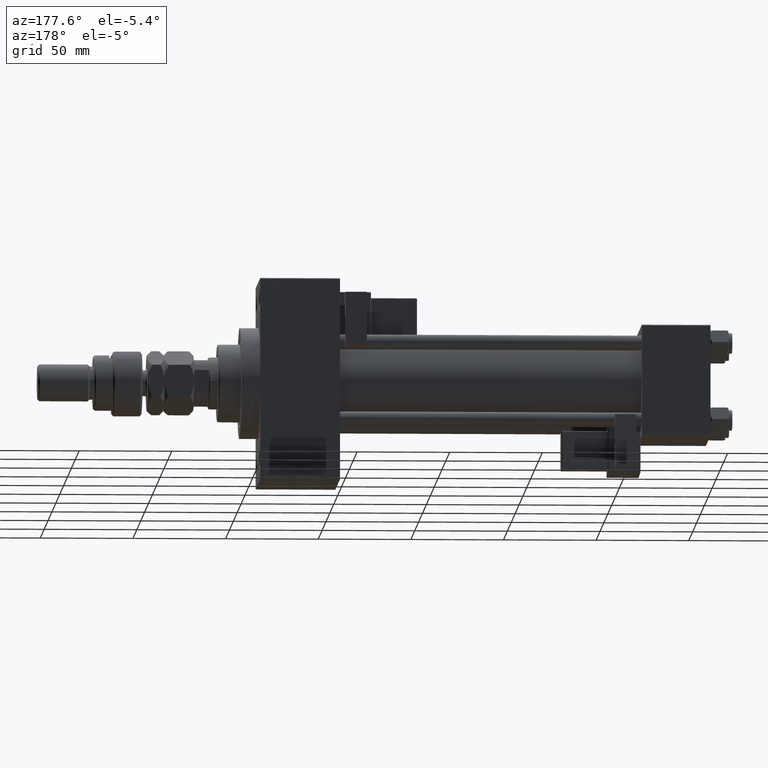
[diagram: clean part render]
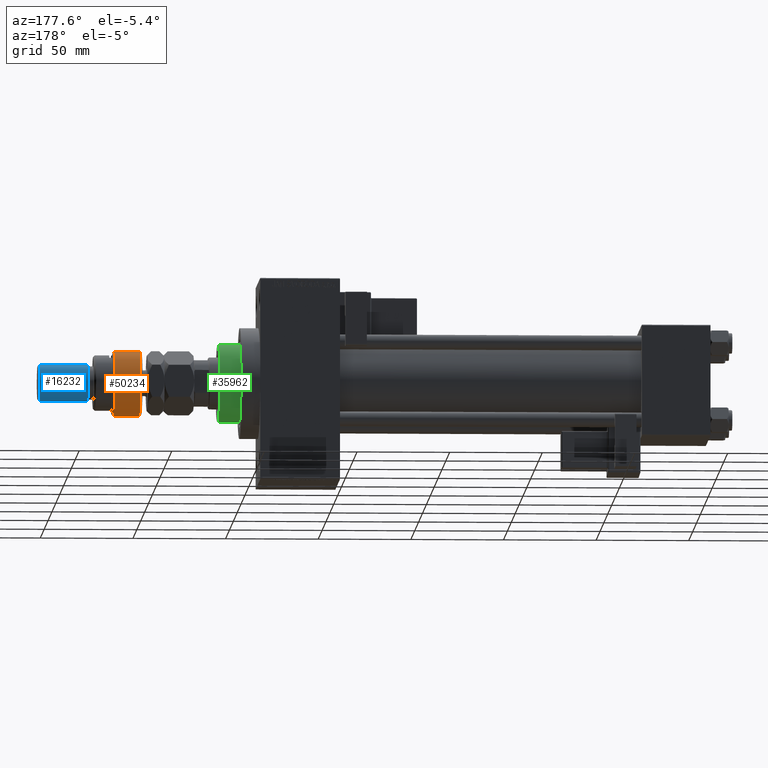
[diagram: same view with three faces highlighted in distinct colors, each labeled with its STEP entity id]
A machine part, auxiliary view with three faces highlighted in distinct colors.
Their STEP definitions:

[orange] entity #50234 — the highlighted cylindrical surface (edge-blend (fillet) strip) has radius 18 mm, axis along (-1, -0, 0).
#2511 = AXIS2_PLACEMENT_3D ( 'NONE', #39981, #35989, #3544 ) ;
#3544 = DIRECTION ( 'NONE',  ( 1.000000000000000000, 0.000000000000000000, 0.000000000000000000 ) ) ;
#5566 = DIRECTION ( 'NONE',  ( -0.000000000000000000, -0.000000000000000000, -1.000000000000000000 ) ) ;
#6790 = EDGE_CURVE ( 'NONE', #44600, #33179, #29002, .T. ) ;
#7346 = AXIS2_PLACEMENT_3D ( 'NONE', #33713, #21750, #17232 ) ;
#9575 = ORIENTED_EDGE ( 'NONE', *, *, #31529, .T. ) ;
#12811 = ORIENTED_EDGE ( 'NONE', *, *, #26823, .T. ) ;
#15485 = CARTESIAN_POINT ( 'NONE',  ( 18.00000000000000000, 0.000000000000000000, 1.000000000000011324 ) ) ;
#15768 = VECTOR ( 'NONE', #49738, 1000.000000000000000 ) ;
#16205 = CIRCLE ( 'NONE', #22990, 18.00000000000000000 ) ;
#16325 = AXIS2_PLACEMENT_3D ( 'NONE', #21393, #18170, #26155 ) ;
#17232 = DIRECTION ( 'NONE',  ( -1.000000000000000000, 0.000000000000000000, 0.000000000000000000 ) ) ;
#18170 = DIRECTION ( 'NONE',  ( 0.000000000000000000, 0.000000000000000000, -1.000000000000000000 ) ) ;
#18522 = VERTEX_POINT ( 'NONE', #21404 ) ;
#18573 = DIRECTION ( 'NONE',  ( -0.000000000000000000, -0.000000000000000000, 1.000000000000000000 ) ) ;
#18626 = EDGE_CURVE ( 'NONE', #29919, #33179, #38187, .T. ) ;
#18789 = CARTESIAN_POINT ( 'NONE',  ( -16.36306817195357155, -7.500000000000000000, 14.99999999999999645 ) ) ;
#19802 = ORIENTED_EDGE ( 'NONE', *, *, #18626, .T. ) ;
#20994 = CARTESIAN_POINT ( 'NONE',  ( -16.36306817195357155, -7.500000000000000000, 17.50000000000000000 ) ) ;
#21393 = CARTESIAN_POINT ( 'NONE',  ( 0.000000000000000000, 0.000000000000000000, 14.99999999999999645 ) ) ;
#21404 = CARTESIAN_POINT ( 'NONE',  ( -16.36306817195357155, -7.500000000000000000, 1.000000000000011324 ) ) ;
#21750 = DIRECTION ( 'NONE',  ( -0.000000000000000000, -0.000000000000000000, -1.000000000000000000 ) ) ;
#22488 = CARTESIAN_POINT ( 'NONE',  ( -16.36306817195357155, 7.500000000000000000, 1.000000000000011324 ) ) ;
#22990 = AXIS2_PLACEMENT_3D ( 'NONE', #39320, #18573, #35593 ) ;
#25366 = ORIENTED_EDGE ( 'NONE', *, *, #32384, .T. ) ;
#26155 = DIRECTION ( 'NONE',  ( 1.000000000000000000, 0.000000000000000000, 0.000000000000000000 ) ) ;
#26276 = LINE ( 'NONE', #20994, #31408 ) ;
#26823 = EDGE_CURVE ( 'NONE', #44600, #27289, #40958, .T. ) ;
#27289 = VERTEX_POINT ( 'NONE', #18789 ) ;
#29002 = LINE ( 'NONE', #37261, #15768 ) ;
#29919 = VERTEX_POINT ( 'NONE', #15485 ) ;
#31408 = VECTOR ( 'NONE', #5566, 1000.000000000000000 ) ;
#31529 = EDGE_CURVE ( 'NONE', #27289, #18522, #26276, .T. ) ;
#32384 = EDGE_CURVE ( 'NONE', #18522, #29919, #16205, .T. ) ;
#32411 = ORIENTED_EDGE ( 'NONE', *, *, #6790, .F. ) ;
#33179 = VERTEX_POINT ( 'NONE', #22488 ) ;
#33713 = CARTESIAN_POINT ( 'NONE',  ( 0.000000000000000000, 0.000000000000000000, 16.00000000000000000 ) ) ;
#35593 = DIRECTION ( 'NONE',  ( 1.000000000000000000, 0.000000000000000000, 0.000000000000000000 ) ) ;
#35989 = DIRECTION ( 'NONE',  ( -0.000000000000000000, -0.000000000000000000, 1.000000000000000000 ) ) ;
#37261 = CARTESIAN_POINT ( 'NONE',  ( -16.36306817195357155, 7.500000000000000000, 17.50000000000000000 ) ) ;
#38187 = CIRCLE ( 'NONE', #2511, 18.00000000000000000 ) ;
#39320 = CARTESIAN_POINT ( 'NONE',  ( 0.000000000000000000, 0.000000000000000000, 1.000000000000011324 ) ) ;
#39981 = CARTESIAN_POINT ( 'NONE',  ( 0.000000000000000000, 0.000000000000000000, 1.000000000000011324 ) ) ;
#40285 = CARTESIAN_POINT ( 'NONE',  ( -16.36306817195357155, 7.500000000000000000, 14.99999999999999645 ) ) ;
#40958 = CIRCLE ( 'NONE', #16325, 18.00000000000000000 ) ;
#44600 = VERTEX_POINT ( 'NONE', #40285 ) ;
#45688 = CYLINDRICAL_SURFACE ( 'NONE', #7346, 18.00000000000000000 ) ;
#45947 = FACE_OUTER_BOUND ( 'NONE', #46096, .T. ) ;
#46096 = EDGE_LOOP ( 'NONE', ( #32411, #12811, #9575, #25366, #19802 ) ) ;
#49738 = DIRECTION ( 'NONE',  ( -0.000000000000000000, -0.000000000000000000, -1.000000000000000000 ) ) ;
#50234 = ADVANCED_FACE ( 'NONE', ( #45947 ), #45688, .T. ) ;

[blue] entity #16232 — the highlighted cylindrical surface (edge-blend (fillet) strip) has radius 10 mm, axis along (-1, -0, 0).
#231 = EDGE_CURVE ( 'NONE', #7110, #49680, #33272, .T. ) ;
#740 = EDGE_CURVE ( 'NONE', #30186, #4122, #47545, .T. ) ;
#742 = CYLINDRICAL_SURFACE ( 'NONE', #12624, 10.00000000000000000 ) ;
#4122 = VERTEX_POINT ( 'NONE', #6650 ) ;
#4981 = DIRECTION ( 'NONE',  ( -0.000000000000000000, -0.000000000000000000, -1.000000000000000000 ) ) ;
#6650 = CARTESIAN_POINT ( 'NONE',  ( 10.00000000000000000, 1.224646799147353256E-15, 29.00000000000000711 ) ) ;
#7110 = VERTEX_POINT ( 'NONE', #17977 ) ;
#8734 = ORIENTED_EDGE ( 'NONE', *, *, #13469, .T. ) ;
#10551 = VECTOR ( 'NONE', #13077, 1000.000000000000000 ) ;
#12000 = DIRECTION ( 'NONE',  ( -0.000000000000000000, -0.000000000000000000, 1.000000000000000000 ) ) ;
#12148 = CARTESIAN_POINT ( 'NONE',  ( 0.000000000000000000, 0.000000000000000000, 54.99999999999998579 ) ) ;
#12624 = AXIS2_PLACEMENT_3D ( 'NONE', #44878, #4981, #37683 ) ;
#13077 = DIRECTION ( 'NONE',  ( -0.000000000000000000, -0.000000000000000000, -1.000000000000000000 ) ) ;
#13469 = EDGE_CURVE ( 'NONE', #4122, #49680, #47302, .T. ) ;
#14831 = ORIENTED_EDGE ( 'NONE', *, *, #22873, .T. ) ;
#16232 = ADVANCED_FACE ( 'NONE', ( #41674 ), #742, .T. ) ;
#17977 = CARTESIAN_POINT ( 'NONE',  ( -10.00000000000000000, 0.000000000000000000, 54.99999999999998579 ) ) ;
#18151 = VECTOR ( 'NONE', #35315, 1000.000000000000000 ) ;
#18288 = ORIENTED_EDGE ( 'NONE', *, *, #231, .F. ) ;
#22873 = EDGE_CURVE ( 'NONE', #7110, #30186, #26488, .T. ) ;
#23425 = DIRECTION ( 'NONE',  ( 1.000000000000000000, 0.000000000000000000, 0.000000000000000000 ) ) ;
#24880 = DIRECTION ( 'NONE',  ( 0.000000000000000000, 0.000000000000000000, -1.000000000000000000 ) ) ;
#24967 = CARTESIAN_POINT ( 'NONE',  ( 10.00000000000000000, 1.224646799147353256E-15, 54.99999999999998579 ) ) ;
#25847 = ORIENTED_EDGE ( 'NONE', *, *, #740, .T. ) ;
#26488 = CIRCLE ( 'NONE', #33285, 10.00000000000000000 ) ;
#30186 = VERTEX_POINT ( 'NONE', #24967 ) ;
#33272 = LINE ( 'NONE', #41786, #10551 ) ;
#33285 = AXIS2_PLACEMENT_3D ( 'NONE', #12148, #24880, #40587 ) ;
#35315 = DIRECTION ( 'NONE',  ( -0.000000000000000000, -0.000000000000000000, -1.000000000000000000 ) ) ;
#37683 = DIRECTION ( 'NONE',  ( -1.000000000000000000, 0.000000000000000000, 0.000000000000000000 ) ) ;
#38249 = EDGE_LOOP ( 'NONE', ( #14831, #25847, #8734, #18288 ) ) ;
#39838 = CARTESIAN_POINT ( 'NONE',  ( 10.00000000000000000, 1.224646799147353256E-15, 56.00000000000000711 ) ) ;
#40587 = DIRECTION ( 'NONE',  ( 1.000000000000000000, 0.000000000000000000, 0.000000000000000000 ) ) ;
#40698 = CARTESIAN_POINT ( 'NONE',  ( 0.000000000000000000, 0.000000000000000000, 29.00000000000000711 ) ) ;
#41674 = FACE_OUTER_BOUND ( 'NONE', #38249, .T. ) ;
#41786 = CARTESIAN_POINT ( 'NONE',  ( -10.00000000000000000, 0.000000000000000000, 56.00000000000000711 ) ) ;
#42599 = CARTESIAN_POINT ( 'NONE',  ( -10.00000000000000000, 0.000000000000000000, 29.00000000000000711 ) ) ;
#44878 = CARTESIAN_POINT ( 'NONE',  ( 0.000000000000000000, 0.000000000000000000, 56.00000000000000711 ) ) ;
#47302 = CIRCLE ( 'NONE', #49879, 10.00000000000000000 ) ;
#47545 = LINE ( 'NONE', #39838, #18151 ) ;
#49680 = VERTEX_POINT ( 'NONE', #42599 ) ;
#49879 = AXIS2_PLACEMENT_3D ( 'NONE', #40698, #12000, #23425 ) ;

[green] entity #35962 — the highlighted cylindrical surface (partial cylindrical patch) has radius 21 mm, axis along (-1, 0, 0).
#317 = DIRECTION ( 'NONE',  ( 1.000000000000000000, 0.000000000000000000, 0.000000000000000000 ) ) ;
#849 = DIRECTION ( 'NONE',  ( 0.000000000000000000, 0.000000000000000000, -1.000000000000000000 ) ) ;
#954 = AXIS2_PLACEMENT_3D ( 'NONE', #22638, #34255, #29742 ) ;
#2556 = CARTESIAN_POINT ( 'NONE',  ( 20.96385542168674831, -1.231570484631382412, 43.25999999999999801 ) ) ;
#3188 = EDGE_CURVE ( 'NONE', #15685, #51267, #43754, .T. ) ;
#4626 = EDGE_CURVE ( 'NONE', #16338, #15685, #33611, .T. ) ;
#5184 = EDGE_CURVE ( 'NONE', #23789, #16190, #14315, .T. ) ;
#6421 = CYLINDRICAL_SURFACE ( 'NONE', #954, 21.00000000000000000 ) ;
#8944 = AXIS2_PLACEMENT_3D ( 'NONE', #45636, #42174, #49355 ) ;
#9047 = DIRECTION ( 'NONE',  ( -0.000000000000000000, -0.000000000000000000, -1.000000000000000000 ) ) ;
#12232 = ORIENTED_EDGE ( 'NONE', *, *, #5184, .T. ) ;
#12440 = EDGE_CURVE ( 'NONE', #46671, #23789, #18529, .T. ) ;
#13403 = CARTESIAN_POINT ( 'NONE',  ( 0.000000000000000000, 0.000000000000000000, 43.25999999999999801 ) ) ;
#13787 = CARTESIAN_POINT ( 'NONE',  ( -21.00000000000000000, 0.000000000000000000, 55.26000000000000512 ) ) ;
#14315 = LINE ( 'NONE', #13787, #47239 ) ;
#14610 = EDGE_CURVE ( 'NONE', #46671, #51267, #29238, .T. ) ;
#15381 = CARTESIAN_POINT ( 'NONE',  ( -21.00000000000000000, 0.000000000000000000, 43.25999999999999801 ) ) ;
#15685 = VERTEX_POINT ( 'NONE', #2556 ) ;
#16190 = VERTEX_POINT ( 'NONE', #15381 ) ;
#16338 = VERTEX_POINT ( 'NONE', #42201 ) ;
#18529 = CIRCLE ( 'NONE', #21080, 21.00000000000000000 ) ;
#19949 = CIRCLE ( 'NONE', #44638, 21.00000000000000000 ) ;
#20207 = ORIENTED_EDGE ( 'NONE', *, *, #4626, .T. ) ;
#21080 = AXIS2_PLACEMENT_3D ( 'NONE', #35755, #849, #317 ) ;
#22247 = CARTESIAN_POINT ( 'NONE',  ( 21.00000000000000000, 2.571758278209441661E-15, 54.75999999999999091 ) ) ;
#22638 = CARTESIAN_POINT ( 'NONE',  ( 0.000000000000000000, 0.000000000000000000, 55.26000000000000512 ) ) ;
#23548 = ORIENTED_EDGE ( 'NONE', *, *, #45423, .T. ) ;
#23789 = VERTEX_POINT ( 'NONE', #43696 ) ;
#26460 = ORIENTED_EDGE ( 'NONE', *, *, #3188, .T. ) ;
#26620 = FACE_OUTER_BOUND ( 'NONE', #39221, .T. ) ;
#28635 = ORIENTED_EDGE ( 'NONE', *, *, #14610, .F. ) ;
#29238 = LINE ( 'NONE', #42270, #49044 ) ;
#29742 = DIRECTION ( 'NONE',  ( -1.000000000000000000, 0.000000000000000000, 0.000000000000000000 ) ) ;
#30243 = CARTESIAN_POINT ( 'NONE',  ( 21.00000000000000000, 2.571758278209441661E-15, 43.25999999999999801 ) ) ;
#32803 = DIRECTION ( 'NONE',  ( 1.000000000000000000, 0.000000000000000000, 0.000000000000000000 ) ) ;
#33596 = DIRECTION ( 'NONE',  ( 0.000000000000000000, 0.000000000000000000, 1.000000000000000000 ) ) ;
#33611 = CIRCLE ( 'NONE', #51446, 21.00000000000000000 ) ;
#34255 = DIRECTION ( 'NONE',  ( -0.000000000000000000, -0.000000000000000000, -1.000000000000000000 ) ) ;
#35755 = CARTESIAN_POINT ( 'NONE',  ( 0.000000000000000000, 0.000000000000000000, 54.75999999999999091 ) ) ;
#35962 = ADVANCED_FACE ( 'NONE', ( #26620 ), #6421, .T. ) ;
#39221 = EDGE_LOOP ( 'NONE', ( #28635, #44658, #12232, #23548, #20207, #26460 ) ) ;
#41410 = DIRECTION ( 'NONE',  ( 1.000000000000000000, 0.000000000000000000, 0.000000000000000000 ) ) ;
#41930 = CARTESIAN_POINT ( 'NONE',  ( 0.000000000000000000, 0.000000000000000000, 43.25999999999999801 ) ) ;
#42174 = DIRECTION ( 'NONE',  ( 0.000000000000000000, 0.000000000000000000, 1.000000000000000000 ) ) ;
#42201 = CARTESIAN_POINT ( 'NONE',  ( -20.96385542168674831, -1.231570484631387741, 43.25999999999999801 ) ) ;
#42270 = CARTESIAN_POINT ( 'NONE',  ( 21.00000000000000000, 2.571758278209441661E-15, 55.26000000000000512 ) ) ;
#43034 = DIRECTION ( 'NONE',  ( -0.000000000000000000, -0.000000000000000000, -1.000000000000000000 ) ) ;
#43696 = CARTESIAN_POINT ( 'NONE',  ( -21.00000000000000000, 0.000000000000000000, 54.75999999999999091 ) ) ;
#43754 = CIRCLE ( 'NONE', #8944, 21.00000000000000000 ) ;
#44638 = AXIS2_PLACEMENT_3D ( 'NONE', #41930, #44682, #41410 ) ;
#44658 = ORIENTED_EDGE ( 'NONE', *, *, #12440, .T. ) ;
#44682 = DIRECTION ( 'NONE',  ( 0.000000000000000000, 0.000000000000000000, 1.000000000000000000 ) ) ;
#45423 = EDGE_CURVE ( 'NONE', #16190, #16338, #19949, .T. ) ;
#45636 = CARTESIAN_POINT ( 'NONE',  ( 0.000000000000000000, 0.000000000000000000, 43.25999999999999801 ) ) ;
#46671 = VERTEX_POINT ( 'NONE', #22247 ) ;
#47239 = VECTOR ( 'NONE', #43034, 1000.000000000000000 ) ;
#49044 = VECTOR ( 'NONE', #9047, 1000.000000000000000 ) ;
#49355 = DIRECTION ( 'NONE',  ( 1.000000000000000000, 0.000000000000000000, 0.000000000000000000 ) ) ;
#51267 = VERTEX_POINT ( 'NONE', #30243 ) ;
#51446 = AXIS2_PLACEMENT_3D ( 'NONE', #13403, #33596, #32803 ) ;